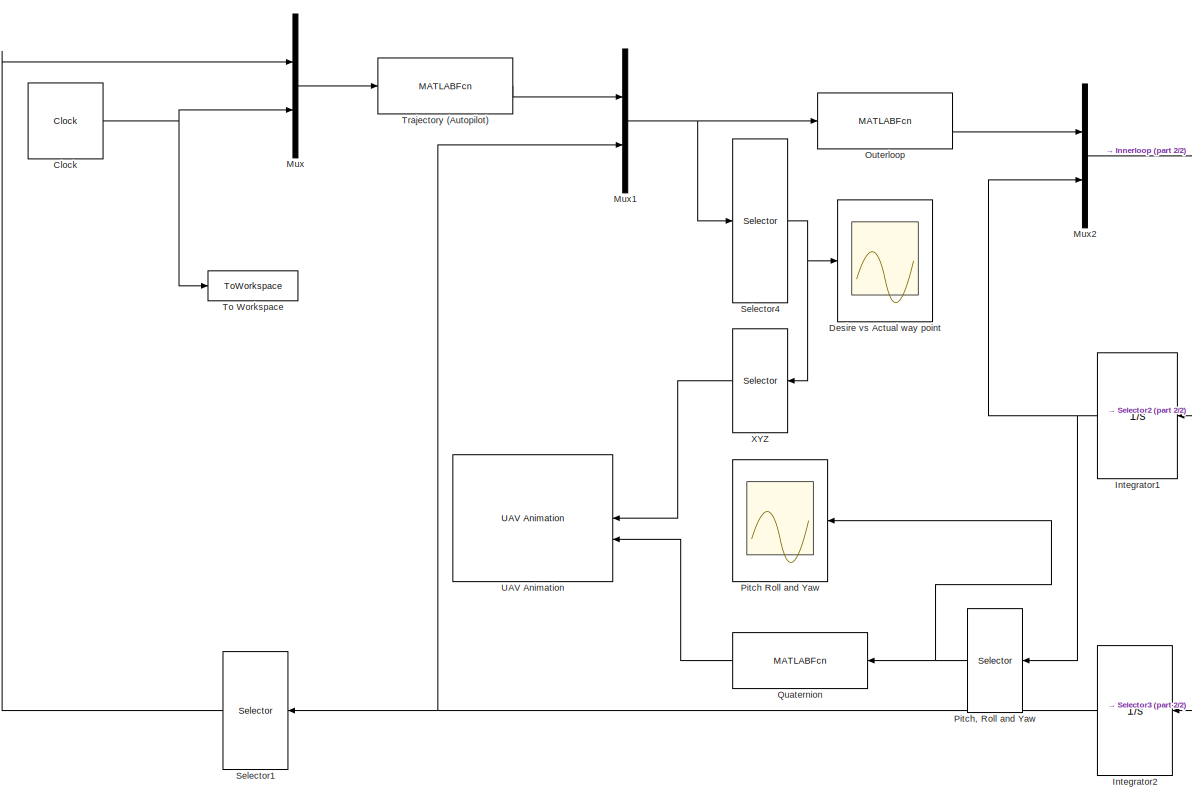
[diagram: root canvas - part 1/2, left side, full height]
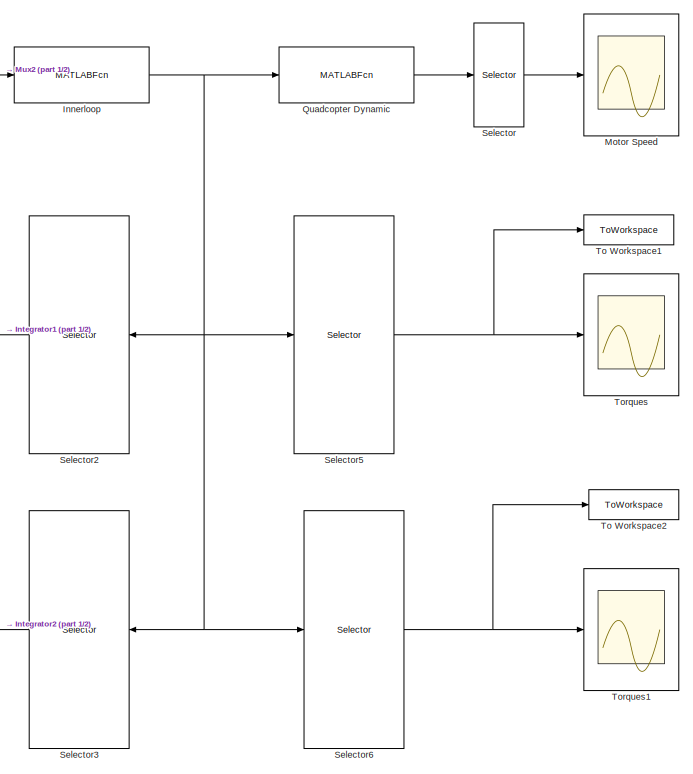
[diagram: root canvas - part 2/2, right side, full height]
MODEL slx_a212df091cb2
KIND model
CONFIG AbsTol = auto
CONFIG EnableMultiTasking = off
CONFIG FixedStep = 0.001
CONFIG MaxStep = auto
CONFIG MinStep = auto
CONFIG RelTol = 1e-3
CONFIG SampleTimeConstraint = Unconstrained
CONFIG SolverName = ode1
CONFIG StartTime = 0.0
CONFIG StopTime = 100
BLOCK [Clock] Clock
  DisplayTime = on
BLOCK [Scope] Desire vs Actual way point
  Floating = off
  NumInputPorts = 1
  ScopeSpecificationString = Simulink.scopes.TimeScopeBlockCfg('CurrentConfiguration', extmgr.ConfigurationSet(extmgr.Configuration('Core','General UI',true,'FigureColor',[1 1 1]),extmgr.Configuration('Core','Source UI',true),extmgr.Configuration('Sources','WiredSimulink',true,'DataLoggingVariableName','ScopeData1'),extmgr.Configuration('Visuals','Time Domain',true,'SerializedDisplays',{struct('MinYLimReal','-0.75','MaxYLimRe...<+2096ch>
BLOCK [MATLABFcn] Innerloop
  MATLABFcn = Innerloop
  OutputDimensions = 17
BLOCK [Integrator] Integrator1
  InitialCondition = [0 0 0 0 0 0]
  NameLocation = top
BLOCK [Integrator] Integrator2
  InitialCondition = [0 0 0 0 0 0]
  NameLocation = top
BLOCK [Scope] Motor Speed
  Floating = off
  NumInputPorts = 1
  ScopeSpecificationString = Simulink.scopes.TimeScopeBlockCfg('CurrentConfiguration', extmgr.ConfigurationSet(extmgr.Configuration('Core','General UI',true,'FigureColor',[1 1 1]),extmgr.Configuration('Core','Source UI',true),extmgr.Configuration('Sources','WiredSimulink',true,'DataLoggingVariableName','ScopeData1'),extmgr.Configuration('Visuals','Time Domain',true,'SerializedDisplays',{struct('MinYLimReal','4.71372','MaxYLim...<+2101ch>
BLOCK [Mux] Mux
  DisplayOption = bar
  Inputs = 2
BLOCK [Mux] Mux1
  DisplayOption = bar
  Inputs = 2
BLOCK [Mux] Mux2
  DisplayOption = bar
  Inputs = 2
BLOCK [MATLABFcn] Outerloop
  MATLABFcn = Outerloop
  OutputDimensions = 13
BLOCK [Scope] Pitch Roll and Yaw
  Floating = off
  NameLocation = top
  NumInputPorts = 1
  ScopeSpecificationString = Simulink.scopes.TimeScopeBlockCfg('CurrentConfiguration', extmgr.ConfigurationSet(extmgr.Configuration('Core','General UI',true,'FigureColor',[1 1 1]),extmgr.Configuration('Core','Source UI',true),extmgr.Configuration('Sources','WiredSimulink',true,'DataLoggingVariableName','ScopeData1'),extmgr.Configuration('Visuals','Time Domain',true,'SerializedDisplays',{struct('MinYLimReal','-0.29774','MaxYLi...<+1901ch>
BLOCK [Selector] Pitch, Roll and Yaw
  IndexOptions = Index vector (dialog)
  Indices = [1 3 5]
  InputPortWidth = 6
  NameLocation = top
  OutputSizes = 1
BLOCK [MATLABFcn] Quadcopter Dynamic
  MATLABFcn = Quad_dynamic
  OutputDimensions = 5
BLOCK [MATLABFcn] Quaternion
  MATLABFcn = quatcompute
  NameLocation = top
  OutputDimensions = 4
BLOCK [Selector] Selector
  IndexOptions = Index vector (dialog)
  Indices = [1 2 3 4]
  InputPortWidth = 5
  OutputSizes = 1
BLOCK [Selector] Selector1
  IndexOptions = Index vector (dialog)
  Indices = [1 2 3]
  InputPortWidth = 6
  NameLocation = top
  OutputSizes = 1
BLOCK [Selector] Selector2
  IndexOptions = Index vector (dialog)
  Indices = [6 7 8 9 10 11]
  InputPortWidth = 17
  NameLocation = top
  OutputSizes = 1
BLOCK [Selector] Selector3
  IndexOptions = Index vector (dialog)
  Indices = [12 13 14 15 16 17]
  InputPortWidth = 17
  NameLocation = top
  OutputSizes = 1
BLOCK [Selector] Selector4
  IndexOptions = Index vector (dialog)
  Indices = [1 2 3 7 8 9]
  InputPortWidth = 12
  OutputSizes = 1
BLOCK [Selector] Selector5
  IndexOptions = Index vector (dialog)
  Indices = [2 3 4]
  InputPortWidth = 17
  OutputSizes = 1
BLOCK [Selector] Selector6
  IndexOptions = Index vector (dialog)
  Indices = [1]
  InputPortWidth = 17
  OutputSizes = 1
BLOCK [ToWorkspace] To Workspace
  MaxDataPoints = inf
  SampleTime = -1
  VariableName = time
BLOCK [ToWorkspace] To Workspace1
  FixptAsFi = on
  MaxDataPoints = inf
  SampleTime = -1
  VariableName = Torques
BLOCK [ToWorkspace] To Workspace2
  FixptAsFi = on
  MaxDataPoints = inf
  SampleTime = -1
  VariableName = Fz
BLOCK [Scope] Torques
  Floating = off
  NumInputPorts = 1
  ScopeSpecificationString = Simulink.scopes.TimeScopeBlockCfg('CurrentConfiguration', extmgr.ConfigurationSet(extmgr.Configuration('Core','General UI',true,'FigureColor',[1 1 1]),extmgr.Configuration('Core','Source UI',true),extmgr.Configuration('Sources','WiredSimulink',true,'DataLoggingVariableName','ScopeData1'),extmgr.Configuration('Visuals','Time Domain',true,'SerializedDisplays',{struct('MinYLimReal','-0.61875','MaxYLi...<+2054ch>
BLOCK [Scope] Torques1
  Floating = off
  NumInputPorts = 1
  ScopeSpecificationString = Simulink.scopes.TimeScopeBlockCfg('CurrentConfiguration', extmgr.ConfigurationSet(extmgr.Configuration('Core','General UI',true,'FigureColor',[1 1 1]),extmgr.Configuration('Core','Source UI',true),extmgr.Configuration('Sources','WiredSimulink',true,'DataLoggingVariableName','ScopeData1'),extmgr.Configuration('Visuals','Time Domain',true,'SerializedDisplays',{struct('MinYLimReal','4.85228','MaxYLim...<+2008ch>
BLOCK [MATLABFcn] Trajectory (Autopilot)
  MATLABFcn = looptrajectory
  OutputDimensions = 6
BLOCK [Reference] UAV Animation  REF=uavutilslib/UAV Animation
  NameLocation = top
  SourceBlock = uavutilslib/UAV Animation
  SourceType = uav.sluav.internal.system.UAVAnimation
BLOCK [Selector] XYZ
  IndexOptions = Index vector (dialog)
  Indices = [4 5 6]
  InputPortWidth = 6
  NameLocation = top
  OutputSizes = 1
NET Clock:1 -> Mux:2, To Workspace:1
NET Innerloop:1 -> Quadcopter Dynamic:1, Selector2:1, Selector3:1, Selector5:1, Selector6:1
NET Integrator1:1 -> Mux2:2, Pitch, Roll and Yaw:1
NET Integrator2:1 -> Mux1:2, Selector1:1
NET Mux1:1 -> Outerloop:1, Selector4:1
LINE Mux2:1 -> Innerloop:1
LINE Mux:1 -> Trajectory (Autopilot):1
LINE Outerloop:1 -> Mux2:1
NET Pitch, Roll and Yaw:1 -> Pitch Roll and Yaw:1, Quaternion:1
LINE Quadcopter Dynamic:1 -> Selector:1
LINE Quaternion:1 -> UAV Animation:2
LINE Selector1:1 -> Mux:1
LINE Selector2:1 -> Integrator1:1
LINE Selector3:1 -> Integrator2:1
NET Selector4:1 -> Desire vs Actual way point:1, XYZ:1
NET Selector5:1 -> To Workspace1:1, Torques:1
NET Selector6:1 -> To Workspace2:1, Torques1:1
LINE Selector:1 -> Motor Speed:1
LINE Trajectory (Autopilot):1 -> Mux1:1
LINE XYZ:1 -> UAV Animation:1
note: NET lines group one-source signal fan-out (src -> all destinations, sorted); 1:1 wires keep LINE
